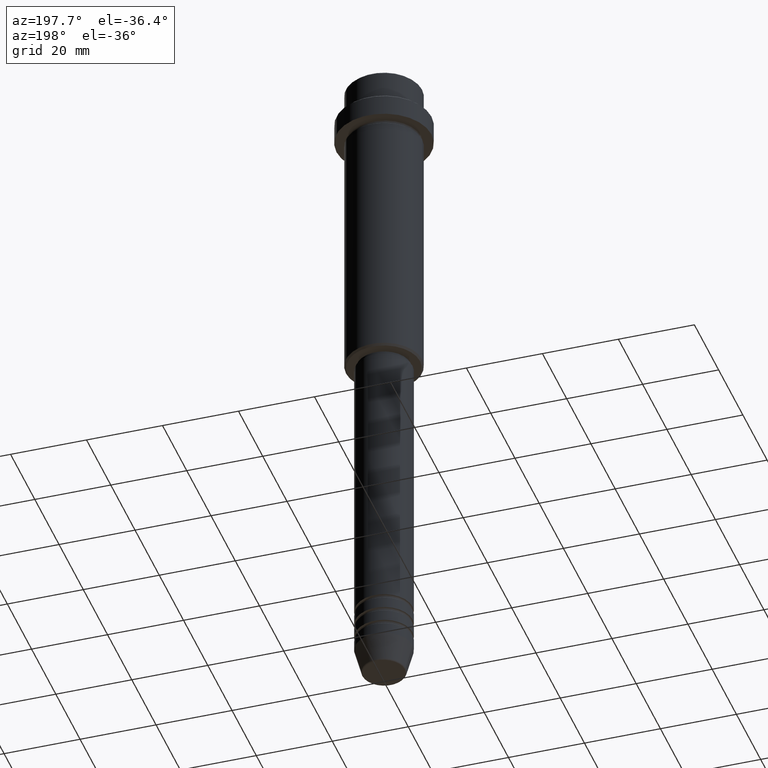
[diagram: clean part render]
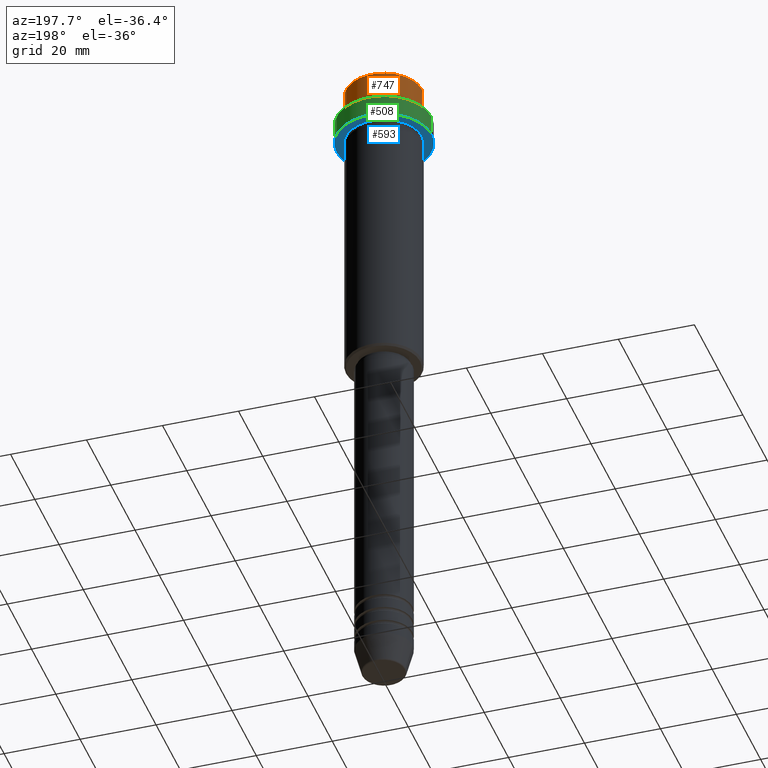
[diagram: same view with three faces highlighted in distinct colors, each labeled with its STEP entity id]
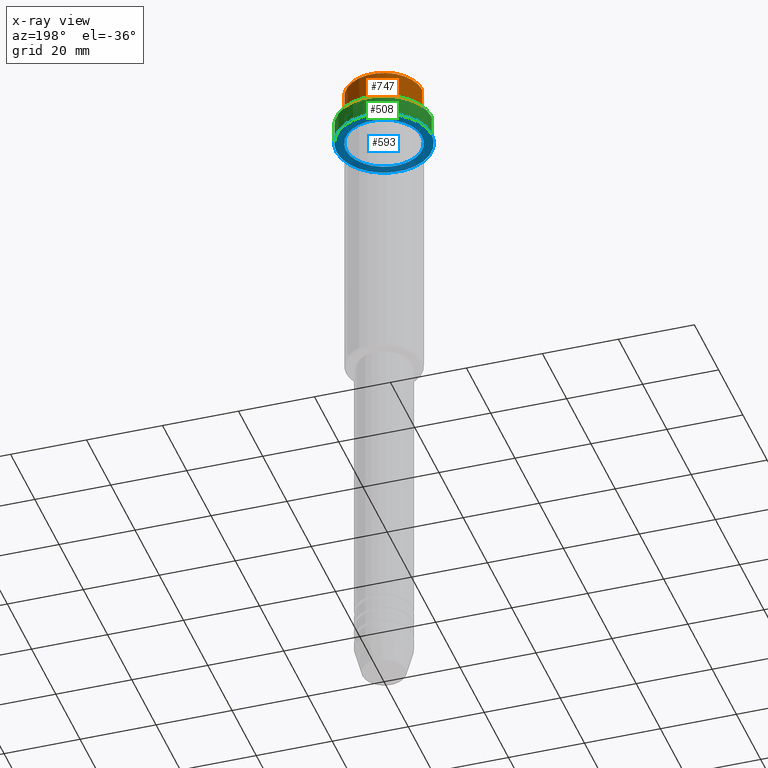
[diagram: x-ray of the same camera — body ghosted, the three highlighted faces saturated]
A machine part, auxiliary view with three faces highlighted in distinct colors.
The next image is the same camera in x-ray (body ghosted, the three faces saturated) — at least one of them is partly hidden behind the body in this view.
Their STEP definitions:

[orange] entity #747 — the highlighted cylindrical surface (partial cylindrical patch) has radius 10 mm, axis along (-0, -0, 1).
#42 = CARTESIAN_POINT ( 'NONE',  ( 9.999999999999998224, 0.000000000000000000, -7.999999999999998224 ) ) ;
#77 = ORIENTED_EDGE ( 'NONE', *, *, #350, .T. ) ;
#169 = LINE ( 'NONE', #717, #1137 ) ;
#201 = EDGE_LOOP ( 'NONE', ( #77, #712, #534, #900 ) ) ;
#223 = CARTESIAN_POINT ( 'NONE',  ( -9.999999999999998224, 1.224646799147353059E-15, -0.4999999999999970024 ) ) ;
#224 = EDGE_CURVE ( 'NONE', #359, #1144, #652, .T. ) ;
#255 = EDGE_CURVE ( 'NONE', #389, #359, #1201, .T. ) ;
#338 = AXIS2_PLACEMENT_3D ( 'NONE', #762, #766, #1198 ) ;
#350 = EDGE_CURVE ( 'NONE', #1042, #389, #1281, .T. ) ;
#359 = VERTEX_POINT ( 'NONE', #223 ) ;
#389 = VERTEX_POINT ( 'NONE', #1335 ) ;
#421 = CARTESIAN_POINT ( 'NONE',  ( 0.000000000000000000, 0.000000000000000000, 0.000000000000000000 ) ) ;
#518 = CARTESIAN_POINT ( 'NONE',  ( 0.000000000000000000, 0.000000000000000000, -0.4999999999999970024 ) ) ;
#527 = AXIS2_PLACEMENT_3D ( 'NONE', #518, #612, #964 ) ;
#529 = AXIS2_PLACEMENT_3D ( 'NONE', #421, #1061, #707 ) ;
#534 = ORIENTED_EDGE ( 'NONE', *, *, #224, .T. ) ;
#612 = DIRECTION ( 'NONE',  ( 0.000000000000000000, 0.000000000000000000, -1.000000000000000000 ) ) ;
#644 = EDGE_CURVE ( 'NONE', #1042, #1144, #169, .T. ) ;
#652 = CIRCLE ( 'NONE', #527, 9.999999999999998224 ) ;
#707 = DIRECTION ( 'NONE',  ( 1.000000000000000000, 0.000000000000000000, 0.000000000000000000 ) ) ;
#712 = ORIENTED_EDGE ( 'NONE', *, *, #255, .T. ) ;
#717 = CARTESIAN_POINT ( 'NONE',  ( 9.999999999999998224, 0.000000000000000000, 0.000000000000000000 ) ) ;
#737 = CYLINDRICAL_SURFACE ( 'NONE', #529, 9.999999999999998224 ) ;
#747 = ADVANCED_FACE ( 'NONE', ( #1282 ), #737, .T. ) ;
#751 = VECTOR ( 'NONE', #777, 1000.000000000000000 ) ;
#762 = CARTESIAN_POINT ( 'NONE',  ( 0.000000000000000000, 0.000000000000000000, -7.999999999999998224 ) ) ;
#766 = DIRECTION ( 'NONE',  ( -0.000000000000000000, -0.000000000000000000, 1.000000000000000000 ) ) ;
#777 = DIRECTION ( 'NONE',  ( -0.000000000000000000, -0.000000000000000000, 1.000000000000000000 ) ) ;
#900 = ORIENTED_EDGE ( 'NONE', *, *, #644, .F. ) ;
#923 = CARTESIAN_POINT ( 'NONE',  ( 9.999999999999998224, 0.000000000000000000, -0.4999999999999970024 ) ) ;
#964 = DIRECTION ( 'NONE',  ( 1.000000000000000000, 0.000000000000000000, 0.000000000000000000 ) ) ;
#980 = CARTESIAN_POINT ( 'NONE',  ( -9.999999999999998224, 1.224646799147353059E-15, 0.000000000000000000 ) ) ;
#1042 = VERTEX_POINT ( 'NONE', #42 ) ;
#1061 = DIRECTION ( 'NONE',  ( -0.000000000000000000, -0.000000000000000000, 1.000000000000000000 ) ) ;
#1137 = VECTOR ( 'NONE', #1381, 1000.000000000000000 ) ;
#1144 = VERTEX_POINT ( 'NONE', #923 ) ;
#1198 = DIRECTION ( 'NONE',  ( 1.000000000000000000, 0.000000000000000000, 0.000000000000000000 ) ) ;
#1201 = LINE ( 'NONE', #980, #751 ) ;
#1281 = CIRCLE ( 'NONE', #338, 9.999999999999998224 ) ;
#1282 = FACE_OUTER_BOUND ( 'NONE', #201, .T. ) ;
#1335 = CARTESIAN_POINT ( 'NONE',  ( -9.999999999999998224, 1.224646799147353059E-15, -7.999999999999998224 ) ) ;
#1381 = DIRECTION ( 'NONE',  ( -0.000000000000000000, -0.000000000000000000, 1.000000000000000000 ) ) ;

[blue] entity #593 — the highlighted planar face has unit normal (0, 0, -1).
#18 = EDGE_LOOP ( 'NONE', ( #716, #1363 ) ) ;
#52 = DIRECTION ( 'NONE',  ( 0.000000000000000000, 0.000000000000000000, -1.000000000000000000 ) ) ;
#137 = CARTESIAN_POINT ( 'NONE',  ( 0.000000000000000000, 0.000000000000000000, -15.00000000000000000 ) ) ;
#150 = DIRECTION ( 'NONE',  ( -0.000000000000000000, -0.000000000000000000, 1.000000000000000000 ) ) ;
#174 = ORIENTED_EDGE ( 'NONE', *, *, #851, .F. ) ;
#207 = CIRCLE ( 'NONE', #562, 9.999999999999992895 ) ;
#217 = DIRECTION ( 'NONE',  ( -1.000000000000000000, 0.000000000000000000, 0.000000000000000000 ) ) ;
#225 = CARTESIAN_POINT ( 'NONE',  ( 0.000000000000000000, 0.000000000000000000, -15.00000000000000000 ) ) ;
#246 = ORIENTED_EDGE ( 'NONE', *, *, #626, .F. ) ;
#281 = CARTESIAN_POINT ( 'NONE',  ( 12.50000000000000000, 0.000000000000000000, -15.00000000000000000 ) ) ;
#285 = DIRECTION ( 'NONE',  ( 1.000000000000000000, 0.000000000000000000, 0.000000000000000000 ) ) ;
#292 = CARTESIAN_POINT ( 'NONE',  ( 9.999999999999992895, 1.224646799147352468E-15, -15.00000000000000000 ) ) ;
#364 = AXIS2_PLACEMENT_3D ( 'NONE', #1007, #620, #285 ) ;
#379 = DIRECTION ( 'NONE',  ( -1.000000000000000000, 0.000000000000000000, -0.000000000000000000 ) ) ;
#403 = EDGE_LOOP ( 'NONE', ( #174, #246 ) ) ;
#484 = FACE_BOUND ( 'NONE', #18, .T. ) ;
#491 = VERTEX_POINT ( 'NONE', #281 ) ;
#562 = AXIS2_PLACEMENT_3D ( 'NONE', #137, #150, #1024 ) ;
#575 = EDGE_CURVE ( 'NONE', #698, #1166, #207, .T. ) ;
#593 = ADVANCED_FACE ( 'NONE', ( #484, #914 ), #1031, .T. ) ;
#620 = DIRECTION ( 'NONE',  ( -0.000000000000000000, -0.000000000000000000, 1.000000000000000000 ) ) ;
#626 = EDGE_CURVE ( 'NONE', #1385, #491, #879, .T. ) ;
#698 = VERTEX_POINT ( 'NONE', #292 ) ;
#716 = ORIENTED_EDGE ( 'NONE', *, *, #857, .T. ) ;
#851 = EDGE_CURVE ( 'NONE', #491, #1385, #1319, .T. ) ;
#857 = EDGE_CURVE ( 'NONE', #1166, #698, #1415, .T. ) ;
#863 = AXIS2_PLACEMENT_3D ( 'NONE', #1354, #52, #379 ) ;
#879 = CIRCLE ( 'NONE', #364, 12.50000000000000000 ) ;
#914 = FACE_OUTER_BOUND ( 'NONE', #403, .T. ) ;
#977 = DIRECTION ( 'NONE',  ( 1.000000000000000000, 0.000000000000000000, 0.000000000000000000 ) ) ;
#981 = CARTESIAN_POINT ( 'NONE',  ( 0.000000000000000000, 0.000000000000000000, -15.00000000000000000 ) ) ;
#1007 = CARTESIAN_POINT ( 'NONE',  ( 0.000000000000000000, 0.000000000000000000, -15.00000000000000000 ) ) ;
#1024 = DIRECTION ( 'NONE',  ( -1.000000000000000000, 0.000000000000000000, 0.000000000000000000 ) ) ;
#1031 = PLANE ( 'NONE',  #863 ) ;
#1083 = DIRECTION ( 'NONE',  ( -0.000000000000000000, -0.000000000000000000, 1.000000000000000000 ) ) ;
#1113 = AXIS2_PLACEMENT_3D ( 'NONE', #981, #1407, #977 ) ;
#1166 = VERTEX_POINT ( 'NONE', #1233 ) ;
#1233 = CARTESIAN_POINT ( 'NONE',  ( -9.999999999999992895, 0.000000000000000000, -15.00000000000000000 ) ) ;
#1290 = CARTESIAN_POINT ( 'NONE',  ( -12.50000000000000000, 1.530808498934191521E-15, -15.00000000000000000 ) ) ;
#1319 = CIRCLE ( 'NONE', #1113, 12.50000000000000000 ) ;
#1354 = CARTESIAN_POINT ( 'NONE',  ( 0.000000000000000000, 12.50000000000000000, -15.00000000000000000 ) ) ;
#1363 = ORIENTED_EDGE ( 'NONE', *, *, #575, .T. ) ;
#1370 = AXIS2_PLACEMENT_3D ( 'NONE', #225, #1083, #217 ) ;
#1385 = VERTEX_POINT ( 'NONE', #1290 ) ;
#1407 = DIRECTION ( 'NONE',  ( -0.000000000000000000, -0.000000000000000000, 1.000000000000000000 ) ) ;
#1415 = CIRCLE ( 'NONE', #1370, 9.999999999999992895 ) ;

[green] entity #508 — the highlighted cylindrical surface (partial cylindrical patch) has radius 12.5 mm, axis along (-0, -0, 1).
#10 = LINE ( 'NONE', #449, #41 ) ;
#17 = AXIS2_PLACEMENT_3D ( 'NONE', #204, #1383, #72 ) ;
#41 = VECTOR ( 'NONE', #235, 1000.000000000000000 ) ;
#72 = DIRECTION ( 'NONE',  ( 1.000000000000000000, 0.000000000000000000, 0.000000000000000000 ) ) ;
#85 = VERTEX_POINT ( 'NONE', #1051 ) ;
#109 = DIRECTION ( 'NONE',  ( -0.000000000000000000, -0.000000000000000000, 1.000000000000000000 ) ) ;
#204 = CARTESIAN_POINT ( 'NONE',  ( 0.000000000000000000, 0.000000000000000000, -9.500000000000005329 ) ) ;
#235 = DIRECTION ( 'NONE',  ( -0.000000000000000000, -0.000000000000000000, 1.000000000000000000 ) ) ;
#281 = CARTESIAN_POINT ( 'NONE',  ( 12.50000000000000000, 0.000000000000000000, -15.00000000000000000 ) ) ;
#343 = EDGE_CURVE ( 'NONE', #491, #1070, #860, .T. ) ;
#388 = DIRECTION ( 'NONE',  ( -0.000000000000000000, -0.000000000000000000, 1.000000000000000000 ) ) ;
#449 = CARTESIAN_POINT ( 'NONE',  ( -12.50000000000000000, 1.530808498934191521E-15, 0.000000000000000000 ) ) ;
#470 = ORIENTED_EDGE ( 'NONE', *, *, #851, .T. ) ;
#491 = VERTEX_POINT ( 'NONE', #281 ) ;
#508 = ADVANCED_FACE ( 'NONE', ( #1119 ), #580, .T. ) ;
#580 = CYLINDRICAL_SURFACE ( 'NONE', #1206, 12.50000000000000000 ) ;
#666 = CARTESIAN_POINT ( 'NONE',  ( 12.50000000000000000, 0.000000000000000000, -9.500000000000005329 ) ) ;
#713 = ORIENTED_EDGE ( 'NONE', *, *, #343, .F. ) ;
#723 = EDGE_LOOP ( 'NONE', ( #470, #837, #1018, #713 ) ) ;
#837 = ORIENTED_EDGE ( 'NONE', *, *, #1062, .T. ) ;
#851 = EDGE_CURVE ( 'NONE', #491, #1385, #1319, .T. ) ;
#860 = LINE ( 'NONE', #1300, #862 ) ;
#862 = VECTOR ( 'NONE', #109, 1000.000000000000000 ) ;
#977 = DIRECTION ( 'NONE',  ( 1.000000000000000000, 0.000000000000000000, 0.000000000000000000 ) ) ;
#981 = CARTESIAN_POINT ( 'NONE',  ( 0.000000000000000000, 0.000000000000000000, -15.00000000000000000 ) ) ;
#1018 = ORIENTED_EDGE ( 'NONE', *, *, #1323, .T. ) ;
#1051 = CARTESIAN_POINT ( 'NONE',  ( -12.50000000000000000, 1.530808498934191521E-15, -9.500000000000005329 ) ) ;
#1062 = EDGE_CURVE ( 'NONE', #1385, #85, #10, .T. ) ;
#1070 = VERTEX_POINT ( 'NONE', #666 ) ;
#1113 = AXIS2_PLACEMENT_3D ( 'NONE', #981, #1407, #977 ) ;
#1119 = FACE_OUTER_BOUND ( 'NONE', #723, .T. ) ;
#1124 = CARTESIAN_POINT ( 'NONE',  ( 0.000000000000000000, 0.000000000000000000, 0.000000000000000000 ) ) ;
#1152 = DIRECTION ( 'NONE',  ( 1.000000000000000000, 0.000000000000000000, 0.000000000000000000 ) ) ;
#1206 = AXIS2_PLACEMENT_3D ( 'NONE', #1124, #388, #1152 ) ;
#1211 = CIRCLE ( 'NONE', #17, 12.50000000000000000 ) ;
#1290 = CARTESIAN_POINT ( 'NONE',  ( -12.50000000000000000, 1.530808498934191521E-15, -15.00000000000000000 ) ) ;
#1300 = CARTESIAN_POINT ( 'NONE',  ( 12.50000000000000000, 0.000000000000000000, 0.000000000000000000 ) ) ;
#1319 = CIRCLE ( 'NONE', #1113, 12.50000000000000000 ) ;
#1323 = EDGE_CURVE ( 'NONE', #85, #1070, #1211, .T. ) ;
#1383 = DIRECTION ( 'NONE',  ( 0.000000000000000000, 0.000000000000000000, -1.000000000000000000 ) ) ;
#1385 = VERTEX_POINT ( 'NONE', #1290 ) ;
#1407 = DIRECTION ( 'NONE',  ( -0.000000000000000000, -0.000000000000000000, 1.000000000000000000 ) ) ;